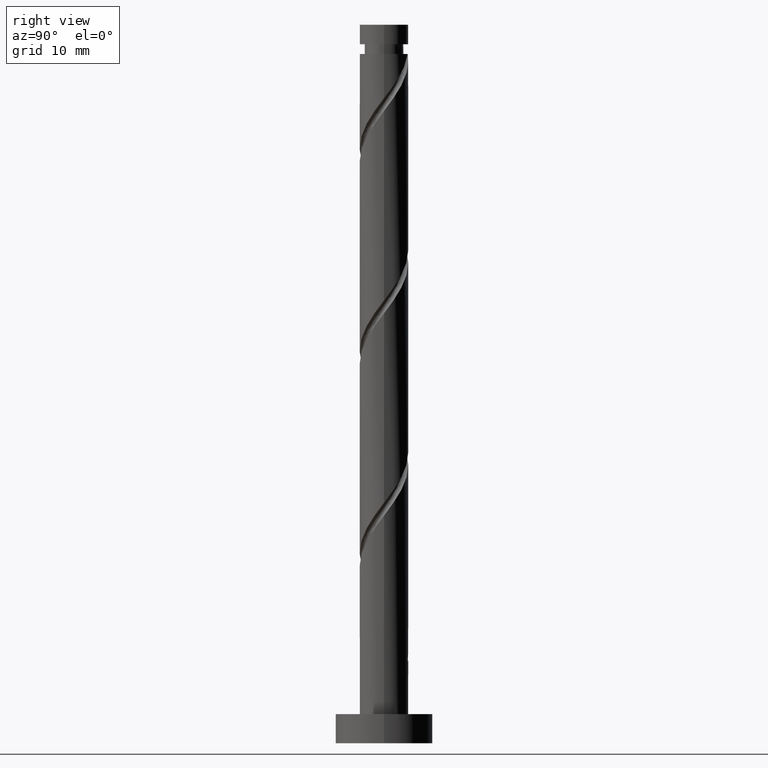
[diagram: clean part render]
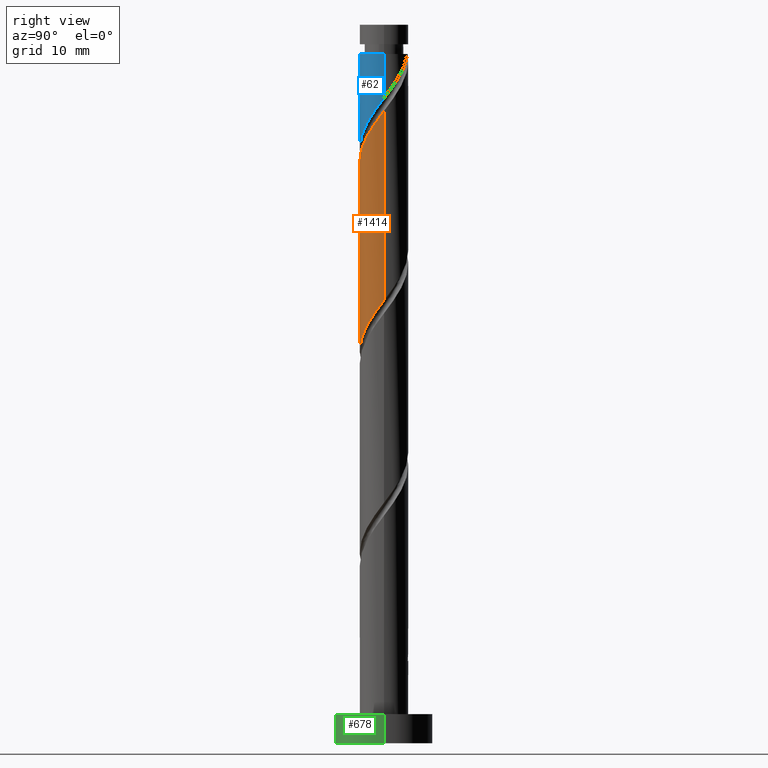
[diagram: same view with three faces highlighted in distinct colors, each labeled with its STEP entity id]
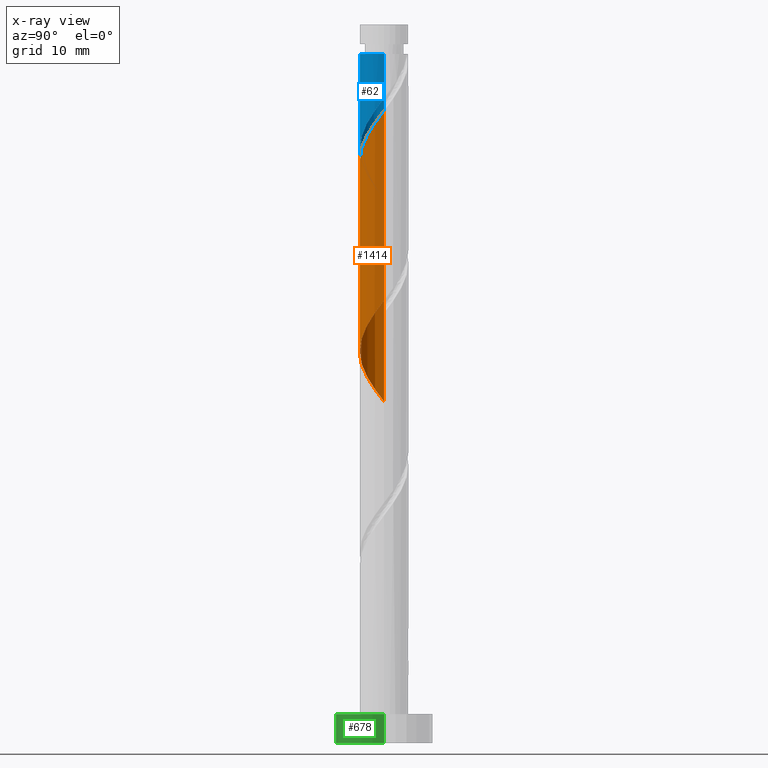
[diagram: x-ray of the same camera — body ghosted, the three highlighted faces saturated]
A machine part, right view with three faces highlighted in distinct colors.
The next image is the same camera in x-ray (body ghosted, the three faces saturated) — at least one of them is partly hidden behind the body in this view.
Their STEP definitions:

[orange] entity #1414 — the highlighted cylindrical surface (edge-blend (fillet) strip) has radius 2.5 mm, axis along (-0, -0, -1).
#15 = ORIENTED_EDGE ( 'NONE', *, *, #341, .F. ) ;
#21 = VERTEX_POINT ( 'NONE', #535 ) ;
#24 = LINE ( 'NONE', #509, #386 ) ;
#61 = CARTESIAN_POINT ( 'NONE',  ( -2.438849692923732881, -0.6773458265033731607, 36.08905622983267847 ) ) ;
#67 = CARTESIAN_POINT ( 'NONE',  ( 2.483822478550889112, -0.2839469933725900508, 64.73488956316600706 ) ) ;
#69 = CARTESIAN_POINT ( 'NONE',  ( -2.500000000000002665, -6.297103168946453709E-16, 54.69508712169576370 ) ) ;
#78 = CARTESIAN_POINT ( 'NONE',  ( -2.483822478550886892, -0.2839469933725886075, 35.56822289649934277 ) ) ;
#94 = CARTESIAN_POINT ( 'NONE',  ( -1.230236279064653937, -2.176354451295366754, 38.69322289649934987 ) ) ;
#152 = ORIENTED_EDGE ( 'NONE', *, *, #571, .T. ) ;
#177 = CARTESIAN_POINT ( 'NONE',  ( 0.4974937185533097606, -2.450000000000004174, 60.56822289649932856 ) ) ;
#200 = CARTESIAN_POINT ( 'NONE',  ( 1.842554741020976161, -1.689672165344846544, 62.65155622983267847 ) ) ;
#202 = CARTESIAN_POINT ( 'NONE',  ( -1.037592995212146540, -2.274511107092402007, 58.48488956316600706 ) ) ;
#252 =( BOUNDED_CURVE ( )  B_SPLINE_CURVE ( 2, ( #300, #1284, #1514, #1051, #1269, #558, #804, #1397, #677, #925, #1522, #1538, #662, #452, #94, #1149, #1299, #932, #437, #61, #78, #1042, #789 ),
 .UNSPECIFIED., .F., .F. ) 
 B_SPLINE_CURVE_WITH_KNOTS ( ( 3, 2, 2, 2, 2, 2, 2, 2, 2, 2, 2, 3 ),
 ( 0.5545322023138553602, 0.5625000000000000000, 0.5749999999999999556, 0.5875000000000000222, 0.5999999999999999778, 0.6125000000000000444, 0.6250000000000000000, 0.6374999999999999556, 0.6500000000000000222, 0.6624999999999999778, 0.6750000000000000444, 0.6795322023138552492 ),
 .UNSPECIFIED. ) 
 CURVE ( )  GEOMETRIC_REPRESENTATION_ITEM ( )  RATIONAL_B_SPLINE_CURVE ( ( 0.9039174447099260767, 0.9019565955404558188, 0.9090909090909039536, 0.8978984914501202397, 0.9090909090909039536, 0.8978984914501202397, 0.9090909090909039536, 0.8978984914501202397, 0.9090909090909039536, 0.8978984914501202397, 0.9090909090909039536, 0.8978984914501202397, 0.9090909090909039536, 0.8978984914501202397, 0.9090909090909039536, 0.8978984914501202397, 0.9090909090909039536, 0.8978984914501202397, 0.9090909090909039536, 0.8978984914501202397, 0.9090909090909039536, 0.9050328050005683744, 0.9039174447099262988 ) ) 
 REPRESENTATION_ITEM ( '' )  );
#300 = CARTESIAN_POINT ( 'NONE',  ( 2.500000000000000444, -2.938648145508366101E-15, 45.60802533796960745 ) ) ;
#316 = CARTESIAN_POINT ( 'NONE',  ( -2.176354451295370307, -1.230236279064654825, 56.40155622983267136 ) ) ;
#323 = CARTESIAN_POINT ( 'NONE',  ( -1.689672165344846544, -1.842554741020976161, 57.44322289649934277 ) ) ;
#341 = EDGE_CURVE ( 'NONE', #849, #875, #24, .T. ) ;
#386 = VECTOR ( 'NONE', #1241, 1000.000000000000000 ) ;
#416 = VECTOR ( 'NONE', #1156, 1000.000000000000000 ) ;
#434 = CARTESIAN_POINT ( 'NONE',  ( 1.230236279064654603, -2.176354451295370307, 61.60988956316599996 ) ) ;
#437 = CARTESIAN_POINT ( 'NONE',  ( -2.274511107092399342, -1.037592995212144542, 36.60988956316600706 ) ) ;
#452 = CARTESIAN_POINT ( 'NONE',  ( -0.8855355973484237975, -2.371204735821961229, 39.21405622983267136 ) ) ;
#507 = ORIENTED_EDGE ( 'NONE', *, *, #587, .F. ) ;
#509 = CARTESIAN_POINT ( 'NONE',  ( 2.500000000000000000, 3.061616997868383141E-16, 74.00000000000000000 ) ) ;
#527 = EDGE_CURVE ( 'NONE', #875, #21, #252, .T. ) ;
#535 = CARTESIAN_POINT ( 'NONE',  ( -2.500000000000000444, 2.608799884277835441E-15, 35.19135867130293605 ) ) ;
#550 = LINE ( 'NONE', #1170, #416 ) ;
#558 = CARTESIAN_POINT ( 'NONE',  ( 1.981504166768770947, -1.574936960780883410, 43.38072289649933566 ) ) ;
#571 = EDGE_CURVE ( 'NONE', #1203, #21, #550, .T. ) ;
#587 = EDGE_CURVE ( 'NONE', #1203, #849, #1123, .T. ) ;
#659 = CARTESIAN_POINT ( 'NONE',  ( 1.574936960780884743, -1.981504166768774500, 62.13072289649934987 ) ) ;
#662 = CARTESIAN_POINT ( 'NONE',  ( -0.4974937185533099271, -2.449999999999999734, 39.73488956316600706 ) ) ;
#677 = CARTESIAN_POINT ( 'NONE',  ( 1.037592995212144542, -2.274511107092399342, 41.81822289649934987 ) ) ;
#686 = CARTESIAN_POINT ( 'NONE',  ( -0.6773458265033750481, -2.438849692923736878, 59.00572289649934987 ) ) ;
#692 = CARTESIAN_POINT ( 'NONE',  ( 0.8855355973484242416, -2.371204735821965226, 61.08905622983267847 ) ) ;
#774 = EDGE_LOOP ( 'NONE', ( #15, #507, #152, #1142 ) ) ;
#789 = CARTESIAN_POINT ( 'NONE',  ( -2.500000000000000444, 2.608799884277835441E-15, 35.19135867130293605 ) ) ;
#796 = CARTESIAN_POINT ( 'NONE',  ( -1.981504166768774500, -1.574936960780885187, 56.92238956316601417 ) ) ;
#800 = CARTESIAN_POINT ( 'NONE',  ( -2.500000000000003109, -6.297103168946453709E-16, 54.69508712169576370 ) ) ;
#804 = CARTESIAN_POINT ( 'NONE',  ( 1.689672165344843435, -1.842554741020974163, 42.85988956316601417 ) ) ;
#816 = FACE_OUTER_BOUND ( 'NONE', #774, .T. ) ;
#818 = CARTESIAN_POINT ( 'NONE',  ( 2.500000000000000444, -2.938648145508366101E-15, 45.60802533796960034 ) ) ;
#849 = VERTEX_POINT ( 'NONE', #1067 ) ;
#875 = VERTEX_POINT ( 'NONE', #818 ) ;
#915 = CARTESIAN_POINT ( 'NONE',  ( 2.500000000000003109, -0.1424343436160822041, 64.92224269915513446 ) ) ;
#925 = CARTESIAN_POINT ( 'NONE',  ( 0.6773458265033731607, -2.438849692923732881, 41.29738956316599996 ) ) ;
#932 = CARTESIAN_POINT ( 'NONE',  ( -2.110172521261063583, -1.397840163920915035, 37.13072289649933566 ) ) ;
#945 = CYLINDRICAL_SURFACE ( 'NONE', #1335, 2.500000000000000000 ) ;
#955 = DIRECTION ( 'NONE',  ( -0.000000000000000000, -0.000000000000000000, -1.000000000000000000 ) ) ;
#1034 = CARTESIAN_POINT ( 'NONE',  ( -2.450000000000004174, -0.4974937185533099271, 55.35988956316600706 ) ) ;
#1040 = CARTESIAN_POINT ( 'NONE',  ( 0.1094518397581950991, -2.528795264178041347, 60.04738956316602128 ) ) ;
#1042 = CARTESIAN_POINT ( 'NONE',  ( -2.500000000000000888, -0.1424343436160809273, 35.38086976051022248 ) ) ;
#1051 = CARTESIAN_POINT ( 'NONE',  ( 2.371204735821961229, -0.8855355973484237975, 44.42238956316600706 ) ) ;
#1065 = DIRECTION ( 'NONE',  ( -1.000000000000000000, 0.000000000000000000, 0.000000000000000000 ) ) ;
#1067 = CARTESIAN_POINT ( 'NONE',  ( 2.500000000000003109, 2.548827473144993192E-16, 65.11175378836240668 ) ) ;
#1123 =( BOUNDED_CURVE ( )  B_SPLINE_CURVE ( 2, ( #69, #1178, #1034, #1388, #316, #796, #323, #1291, #202, #686, #1395, #1040, #177, #692, #434, #659, #200, #1297, #1282, #1528, #67, #915, #1176 ),
 .UNSPECIFIED., .F., .F. ) 
 B_SPLINE_CURVE_WITH_KNOTS ( ( 3, 2, 2, 2, 2, 2, 2, 2, 2, 2, 2, 3 ),
 ( 0.5545322023138553602, 0.5625000000000000000, 0.5749999999999999556, 0.5875000000000000222, 0.5999999999999999778, 0.6125000000000000444, 0.6250000000000000000, 0.6374999999999999556, 0.6500000000000000222, 0.6624999999999999778, 0.6750000000000000444, 0.6795322023138552492 ),
 .UNSPECIFIED. ) 
 CURVE ( )  GEOMETRIC_REPRESENTATION_ITEM ( )  RATIONAL_B_SPLINE_CURVE ( ( 0.9039174447099325160, 0.9019565955404622581, 0.9090909090909105039, 0.8978984914501265679, 0.9090909090909105039, 0.8978984914501265679, 0.9090909090909105039, 0.8978984914501265679, 0.9090909090909105039, 0.8978984914501265679, 0.9090909090909105039, 0.8978984914501265679, 0.9090909090909105039, 0.8978984914501265679, 0.9090909090909105039, 0.8978984914501265679, 0.9090909090909105039, 0.8978984914501265679, 0.9090909090909105039, 0.8978984914501265679, 0.9090909090909105039, 0.9050328050005749247, 0.9039174447099327381 ) ) 
 REPRESENTATION_ITEM ( '' )  );
#1142 = ORIENTED_EDGE ( 'NONE', *, *, #527, .F. ) ;
#1149 = CARTESIAN_POINT ( 'NONE',  ( -1.574936960780883410, -1.981504166768770947, 38.17238956316599996 ) ) ;
#1156 = DIRECTION ( 'NONE',  ( -0.000000000000000000, -0.000000000000000000, -1.000000000000000000 ) ) ;
#1170 = CARTESIAN_POINT ( 'NONE',  ( -2.500000000000000000, 0.000000000000000000, 74.00000000000000000 ) ) ;
#1176 = CARTESIAN_POINT ( 'NONE',  ( 2.500000000000003109, 2.548827473144993192E-16, 65.11175378836240668 ) ) ;
#1178 = CARTESIAN_POINT ( 'NONE',  ( -2.500000000000003109, -0.2512594538148074097, 55.02939169710359124 ) ) ;
#1203 = VERTEX_POINT ( 'NONE', #800 ) ;
#1241 = DIRECTION ( 'NONE',  ( -0.000000000000000000, -0.000000000000000000, -1.000000000000000000 ) ) ;
#1269 = CARTESIAN_POINT ( 'NONE',  ( 2.176354451295366754, -1.230236279064654159, 43.90155622983268557 ) ) ;
#1282 = CARTESIAN_POINT ( 'NONE',  ( 2.274511107092402007, -1.037592995212146540, 63.69322289649934277 ) ) ;
#1284 = CARTESIAN_POINT ( 'NONE',  ( 2.499999999999998668, -0.2512594538148079093, 45.27372076256175149 ) ) ;
#1291 = CARTESIAN_POINT ( 'NONE',  ( -1.397840163920918366, -2.110172521261066692, 57.96405622983267847 ) ) ;
#1297 = CARTESIAN_POINT ( 'NONE',  ( 2.110172521261066692, -1.397840163920918588, 63.17238956316600706 ) ) ;
#1299 = CARTESIAN_POINT ( 'NONE',  ( -1.842554741020974163, -1.689672165344843435, 37.65155622983267136 ) ) ;
#1335 = AXIS2_PLACEMENT_3D ( 'NONE', #1558, #955, #1065 ) ;
#1388 = CARTESIAN_POINT ( 'NONE',  ( -2.371204735821965226, -0.8855355973484243526, 55.88072289649934277 ) ) ;
#1395 = CARTESIAN_POINT ( 'NONE',  ( -0.2839469933725899953, -2.483822478550889112, 59.52655622983265715 ) ) ;
#1397 = CARTESIAN_POINT ( 'NONE',  ( 1.397840163920915035, -2.110172521261064027, 42.33905622983266426 ) ) ;
#1414 = ADVANCED_FACE ( 'NONE', ( #816 ), #945, .T. ) ;
#1514 = CARTESIAN_POINT ( 'NONE',  ( 2.449999999999999734, -0.4974937185533101491, 44.94322289649934277 ) ) ;
#1522 = CARTESIAN_POINT ( 'NONE',  ( 0.2839469933725885520, -2.483822478550886892, 40.77655622983267136 ) ) ;
#1528 = CARTESIAN_POINT ( 'NONE',  ( 2.438849692923736878, -0.6773458265033750481, 64.21405622983267847 ) ) ;
#1538 = CARTESIAN_POINT ( 'NONE',  ( -0.1094518397581961261, -2.528795264178037794, 40.25572289649933566 ) ) ;
#1558 = CARTESIAN_POINT ( 'NONE',  ( 0.000000000000000000, 0.000000000000000000, 74.00000000000000000 ) ) ;

[blue] entity #62 — the highlighted cylindrical surface (edge-blend (fillet) strip) has radius 2.5 mm, axis along (-0, -0, -1).
#9 = CARTESIAN_POINT ( 'NONE',  ( 2.500000000000002665, 3.061616997868386592E-16, 70.98488956316600706 ) ) ;
#53 = ORIENTED_EDGE ( 'NONE', *, *, #357, .F. ) ;
#62 = ADVANCED_FACE ( 'NONE', ( #356 ), #1326, .T. ) ;
#98 =( BOUNDED_CURVE ( )  B_SPLINE_CURVE ( 2, ( #681, #1054, #334, #1534, #928, #319, #935, #563, #198, #1417, #799, #1541, #1046, #1401, #807, #572, #448, #1409, #326, #553, #1526, #1295, #440 ),
 .UNSPECIFIED., .F., .F. ) 
 B_SPLINE_CURVE_WITH_KNOTS ( ( 3, 2, 2, 2, 2, 2, 2, 2, 2, 2, 2, 3 ),
 ( 0.3045322023138551937, 0.3125000000000000000, 0.3250000000000000111, 0.3375000000000000222, 0.3499999999999999778, 0.3624999999999999889, 0.3750000000000000000, 0.3875000000000000111, 0.4000000000000000222, 0.4124999999999999778, 0.4249999999999999889, 0.4295322023138551937 ),
 .UNSPECIFIED. ) 
 CURVE ( )  GEOMETRIC_REPRESENTATION_ITEM ( )  RATIONAL_B_SPLINE_CURVE ( ( 0.9039174447099264098, 0.9019565955404557078, 0.9090909090909039536, 0.8978984914501202397, 0.9090909090909039536, 0.8978984914501202397, 0.9090909090909039536, 0.8978984914501202397, 0.9090909090909039536, 0.8978984914501202397, 0.9090909090909039536, 0.8978984914501202397, 0.9090909090909039536, 0.8978984914501202397, 0.9090909090909039536, 0.8978984914501202397, 0.9090909090909039536, 0.8978984914501202397, 0.9090909090909039536, 0.8978984914501202397, 0.9090909090909039536, 0.9050328050005684855, 0.9039174447099264098 ) ) 
 REPRESENTATION_ITEM ( '' )  );
#136 = VERTEX_POINT ( 'NONE', #569 ) ;
#198 = CARTESIAN_POINT ( 'NONE',  ( 1.037592995212144542, -2.274511107092399342, 62.65155622983269268 ) ) ;
#219 = VECTOR ( 'NONE', #1187, 1000.000000000000000 ) ;
#236 = VERTEX_POINT ( 'NONE', #1489 ) ;
#311 = CARTESIAN_POINT ( 'NONE',  ( 0.000000000000000000, 0.000000000000000000, 70.98488956316600706 ) ) ;
#319 = CARTESIAN_POINT ( 'NONE',  ( 1.981504166768770947, -1.574936960780883410, 64.21405622983267847 ) ) ;
#326 = CARTESIAN_POINT ( 'NONE',  ( -2.274511107092399342, -1.037592995212144542, 57.44322289649934987 ) ) ;
#334 = CARTESIAN_POINT ( 'NONE',  ( 2.449999999999999734, -0.4974937185533101491, 65.77655622983269268 ) ) ;
#353 = LINE ( 'NONE', #1419, #219 ) ;
#356 = FACE_OUTER_BOUND ( 'NONE', #725, .T. ) ;
#357 = EDGE_CURVE ( 'NONE', #136, #867, #98, .T. ) ;
#440 = CARTESIAN_POINT ( 'NONE',  ( -2.500000000000000000, 1.319393044922123427E-15, 56.02469200463625043 ) ) ;
#448 = CARTESIAN_POINT ( 'NONE',  ( -1.842554741020974163, -1.689672165344843435, 58.48488956316602128 ) ) ;
#469 = CARTESIAN_POINT ( 'NONE',  ( -2.500000000000000000, 1.319393044922123427E-15, 56.02469200463625754 ) ) ;
#540 = CARTESIAN_POINT ( 'NONE',  ( 2.500000000000000000, 3.061616997868383141E-16, 74.00000000000000000 ) ) ;
#553 = CARTESIAN_POINT ( 'NONE',  ( -2.438849692923732881, -0.6773458265033731607, 56.92238956316599996 ) ) ;
#555 = DIRECTION ( 'NONE',  ( -0.000000000000000000, -0.000000000000000000, -1.000000000000000000 ) ) ;
#563 = CARTESIAN_POINT ( 'NONE',  ( 1.397840163920915035, -2.110172521261064027, 63.17238956316600706 ) ) ;
#569 = CARTESIAN_POINT ( 'NONE',  ( 2.500000000000000000, 1.829158539551125319E-15, 66.44135867130295026 ) ) ;
#572 = CARTESIAN_POINT ( 'NONE',  ( -1.574936960780883410, -1.981504166768770947, 59.00572289649933566 ) ) ;
#631 = AXIS2_PLACEMENT_3D ( 'NONE', #311, #1378, #1288 ) ;
#641 = EDGE_CURVE ( 'NONE', #971, #136, #904, .T. ) ;
#681 = CARTESIAN_POINT ( 'NONE',  ( 2.500000000000000000, 1.829158539551125319E-15, 66.44135867130295026 ) ) ;
#705 = EDGE_CURVE ( 'NONE', #236, #867, #353, .T. ) ;
#709 = DIRECTION ( 'NONE',  ( -1.000000000000000000, 0.000000000000000000, 0.000000000000000000 ) ) ;
#725 = EDGE_LOOP ( 'NONE', ( #1150, #731, #1575, #53 ) ) ;
#731 = ORIENTED_EDGE ( 'NONE', *, *, #1164, .T. ) ;
#799 = CARTESIAN_POINT ( 'NONE',  ( 0.2839469933725885520, -2.483822478550886892, 61.60988956316602128 ) ) ;
#807 = CARTESIAN_POINT ( 'NONE',  ( -1.230236279064653937, -2.176354451295366754, 59.52655622983267847 ) ) ;
#867 = VERTEX_POINT ( 'NONE', #469 ) ;
#904 = LINE ( 'NONE', #540, #1439 ) ;
#928 = CARTESIAN_POINT ( 'NONE',  ( 2.176354451295366754, -1.230236279064654159, 64.73488956316602128 ) ) ;
#935 = CARTESIAN_POINT ( 'NONE',  ( 1.689672165344843435, -1.842554741020974163, 63.69322289649935698 ) ) ;
#971 = VERTEX_POINT ( 'NONE', #9 ) ;
#1046 = CARTESIAN_POINT ( 'NONE',  ( -0.4974937185533099271, -2.449999999999999734, 60.56822289649934277 ) ) ;
#1054 = CARTESIAN_POINT ( 'NONE',  ( 2.499999999999999556, -0.2512594538148038570, 66.10705409589510850 ) ) ;
#1066 = AXIS2_PLACEMENT_3D ( 'NONE', #1090, #1099, #709 ) ;
#1090 = CARTESIAN_POINT ( 'NONE',  ( 0.000000000000000000, 0.000000000000000000, 74.00000000000000000 ) ) ;
#1099 = DIRECTION ( 'NONE',  ( -0.000000000000000000, -0.000000000000000000, -1.000000000000000000 ) ) ;
#1150 = ORIENTED_EDGE ( 'NONE', *, *, #641, .F. ) ;
#1164 = EDGE_CURVE ( 'NONE', #971, #236, #1270, .T. ) ;
#1187 = DIRECTION ( 'NONE',  ( -0.000000000000000000, -0.000000000000000000, -1.000000000000000000 ) ) ;
#1270 = CIRCLE ( 'NONE', #631, 2.500000000000003109 ) ;
#1288 = DIRECTION ( 'NONE',  ( -1.000000000000000000, 0.000000000000000000, 0.000000000000000000 ) ) ;
#1295 = CARTESIAN_POINT ( 'NONE',  ( -2.500000000000000444, -0.1424343436160815657, 56.21420309384354397 ) ) ;
#1326 = CYLINDRICAL_SURFACE ( 'NONE', #1066, 2.500000000000000000 ) ;
#1378 = DIRECTION ( 'NONE',  ( -0.000000000000000000, -0.000000000000000000, -1.000000000000000000 ) ) ;
#1401 = CARTESIAN_POINT ( 'NONE',  ( -0.8855355973484237975, -2.371204735821961229, 60.04738956316599996 ) ) ;
#1409 = CARTESIAN_POINT ( 'NONE',  ( -2.110172521261063583, -1.397840163920915035, 57.96405622983266426 ) ) ;
#1417 = CARTESIAN_POINT ( 'NONE',  ( 0.6773458265033731607, -2.438849692923732881, 62.13072289649934987 ) ) ;
#1419 = CARTESIAN_POINT ( 'NONE',  ( -2.500000000000000000, 0.000000000000000000, 74.00000000000000000 ) ) ;
#1439 = VECTOR ( 'NONE', #555, 1000.000000000000000 ) ;
#1489 = CARTESIAN_POINT ( 'NONE',  ( -2.500000000000002665, 0.000000000000000000, 70.98488956316600706 ) ) ;
#1526 = CARTESIAN_POINT ( 'NONE',  ( -2.483822478550886892, -0.2839469933725886075, 56.40155622983267847 ) ) ;
#1534 = CARTESIAN_POINT ( 'NONE',  ( 2.371204735821961229, -0.8855355973484237975, 65.25572289649933566 ) ) ;
#1541 = CARTESIAN_POINT ( 'NONE',  ( -0.1094518397581961261, -2.528795264178037794, 61.08905622983267847 ) ) ;
#1575 = ORIENTED_EDGE ( 'NONE', *, *, #705, .T. ) ;

[green] entity #678 — the highlighted cylindrical surface (partial cylindrical patch) has radius 5 mm, axis along (-0, -0, -1).
#75 = AXIS2_PLACEMENT_3D ( 'NONE', #238, #1078, #698 ) ;
#79 = CIRCLE ( 'NONE', #246, 5.000000000000000000 ) ;
#92 = DIRECTION ( 'NONE',  ( 1.000000000000000000, 0.000000000000000000, 0.000000000000000000 ) ) ;
#107 = DIRECTION ( 'NONE',  ( 1.000000000000000000, 0.000000000000000000, 0.000000000000000000 ) ) ;
#116 = VECTOR ( 'NONE', #702, 1000.000000000000000 ) ;
#163 = DIRECTION ( 'NONE',  ( -0.000000000000000000, -0.000000000000000000, -1.000000000000000000 ) ) ;
#214 = FACE_OUTER_BOUND ( 'NONE', #501, .T. ) ;
#238 = CARTESIAN_POINT ( 'NONE',  ( 0.000000000000000000, 0.000000000000000000, 3.000000000000000000 ) ) ;
#246 = AXIS2_PLACEMENT_3D ( 'NONE', #1180, #936, #107 ) ;
#255 = EDGE_CURVE ( 'NONE', #1524, #718, #519, .T. ) ;
#383 = CARTESIAN_POINT ( 'NONE',  ( 5.000000000000000000, 6.123233995736766282E-16, 3.000000000000000000 ) ) ;
#430 = AXIS2_PLACEMENT_3D ( 'NONE', #1308, #584, #92 ) ;
#462 = CARTESIAN_POINT ( 'NONE',  ( -5.000000000000000000, 0.000000000000000000, 3.000000000000000000 ) ) ;
#501 = EDGE_LOOP ( 'NONE', ( #1217, #1532, #855, #745 ) ) ;
#519 = LINE ( 'NONE', #383, #1531 ) ;
#584 = DIRECTION ( 'NONE',  ( 0.000000000000000000, 0.000000000000000000, 1.000000000000000000 ) ) ;
#634 = CARTESIAN_POINT ( 'NONE',  ( -5.000000000000000000, 0.000000000000000000, 0.000000000000000000 ) ) ;
#678 = ADVANCED_FACE ( 'NONE', ( #214 ), #1429, .T. ) ;
#690 = EDGE_CURVE ( 'NONE', #1382, #1009, #721, .T. ) ;
#698 = DIRECTION ( 'NONE',  ( -1.000000000000000000, 0.000000000000000000, 0.000000000000000000 ) ) ;
#702 = DIRECTION ( 'NONE',  ( -0.000000000000000000, -0.000000000000000000, -1.000000000000000000 ) ) ;
#716 = EDGE_CURVE ( 'NONE', #1382, #1524, #1105, .T. ) ;
#718 = VERTEX_POINT ( 'NONE', #1555 ) ;
#721 = LINE ( 'NONE', #1425, #116 ) ;
#745 = ORIENTED_EDGE ( 'NONE', *, *, #1432, .T. ) ;
#855 = ORIENTED_EDGE ( 'NONE', *, *, #690, .T. ) ;
#936 = DIRECTION ( 'NONE',  ( 0.000000000000000000, 0.000000000000000000, 1.000000000000000000 ) ) ;
#1009 = VERTEX_POINT ( 'NONE', #634 ) ;
#1078 = DIRECTION ( 'NONE',  ( -0.000000000000000000, -0.000000000000000000, -1.000000000000000000 ) ) ;
#1105 = CIRCLE ( 'NONE', #430, 5.000000000000000000 ) ;
#1180 = CARTESIAN_POINT ( 'NONE',  ( 0.000000000000000000, 0.000000000000000000, 0.000000000000000000 ) ) ;
#1217 = ORIENTED_EDGE ( 'NONE', *, *, #255, .F. ) ;
#1308 = CARTESIAN_POINT ( 'NONE',  ( 0.000000000000000000, 0.000000000000000000, 3.000000000000000000 ) ) ;
#1382 = VERTEX_POINT ( 'NONE', #462 ) ;
#1425 = CARTESIAN_POINT ( 'NONE',  ( -5.000000000000000000, 0.000000000000000000, 3.000000000000000000 ) ) ;
#1429 = CYLINDRICAL_SURFACE ( 'NONE', #75, 5.000000000000000000 ) ;
#1432 = EDGE_CURVE ( 'NONE', #1009, #718, #79, .T. ) ;
#1471 = CARTESIAN_POINT ( 'NONE',  ( 5.000000000000000000, 6.123233995736766282E-16, 3.000000000000000000 ) ) ;
#1524 = VERTEX_POINT ( 'NONE', #1471 ) ;
#1531 = VECTOR ( 'NONE', #163, 1000.000000000000000 ) ;
#1532 = ORIENTED_EDGE ( 'NONE', *, *, #716, .F. ) ;
#1555 = CARTESIAN_POINT ( 'NONE',  ( 5.000000000000000000, 6.123233995736766282E-16, 0.000000000000000000 ) ) ;